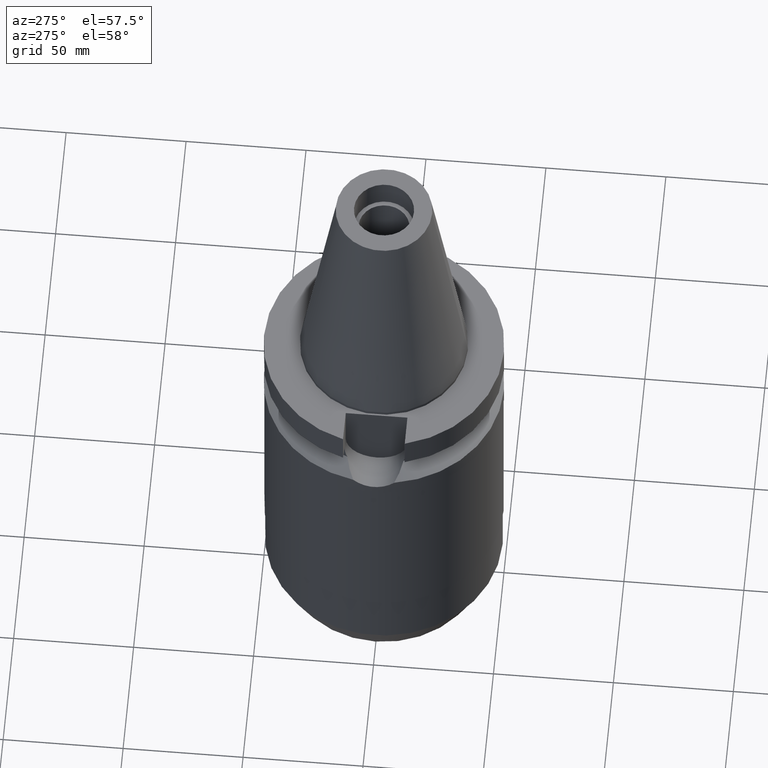
[diagram: clean part render]
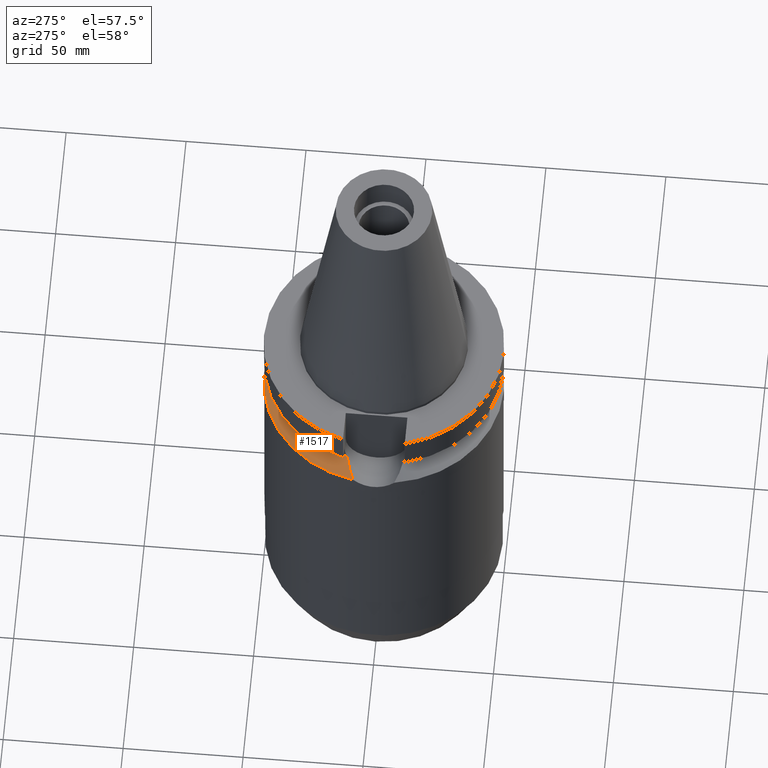
[diagram: same view with one face highlighted and labeled with its STEP entity id]
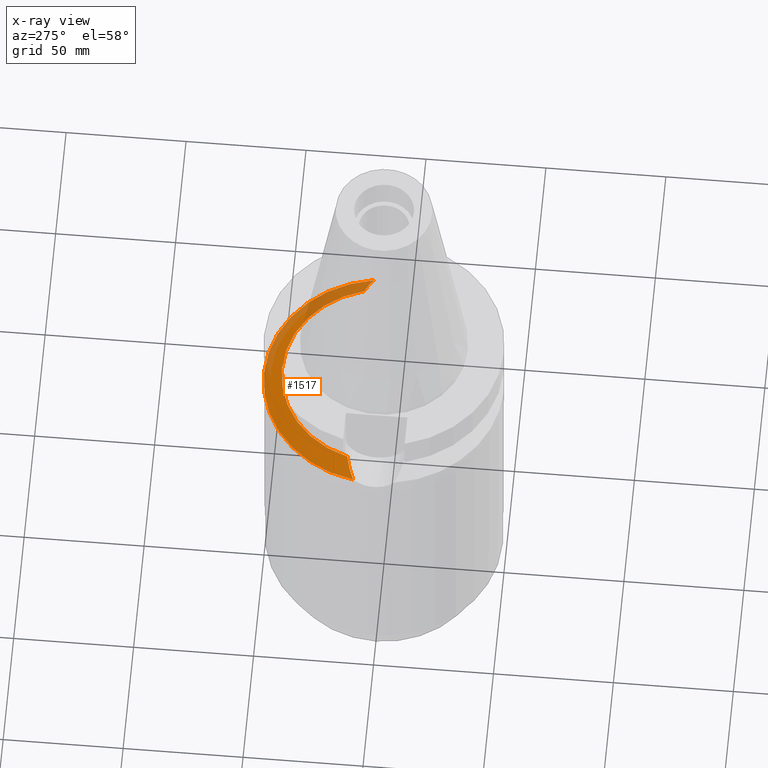
[diagram: x-ray of the same camera — body ghosted, the highlighted face saturated]
A machine part, auxiliary view. The second image highlights one B-rep face of the part: STEP entity #1517.
The next image is the same camera in x-ray: the body ghosted, the highlighted face saturated — about 27% of this face is hidden behind the body in this view.
In plain terms, the highlighted conical surface has half-angle 60 deg.
Its self-contained STEP definition (entity closure, byte-faithful):
#269=CARTESIAN_POINT('',(-4.926250064874E1,8.556052234130E0,-3.073730776427E1));
#377=CARTESIAN_POINT('',(-4.085052569294E1,1.172538061688E1,-2.640718074535E1));
#378=CARTESIAN_POINT('',(-4.199352422803E1,1.145994385176E1,-2.699919902501E1));
#379=CARTESIAN_POINT('',(-4.414328403390E1,1.085477813397E1,-2.810912070415E1));
#380=CARTESIAN_POINT('',(-4.694720385246E1,9.776387596408E0,-2.955077004599E1));
#381=CARTESIAN_POINT('',(-4.853760056062E1,8.972047711199E0,-3.036605870056E1));
#382=CARTESIAN_POINT('',(-4.926250064874E1,8.556052234130E0,-3.073730776427E1));
#387=CARTESIAN_POINT('',(0.E0,0.E0,-3.073730776427E1));
#388=DIRECTION('',(0.E0,0.E0,-1.E0));
#389=DIRECTION('',(-9.852500129747E-1,1.711210446826E-1,0.E0));
#390=AXIS2_PLACEMENT_3D('',#387,#388,#389);
#395=CARTESIAN_POINT('',(0.E0,0.E0,-3.073730776427E1));
#396=DIRECTION('',(0.E0,0.E0,-1.E0));
#397=DIRECTION('',(0.E0,1.E0,0.E0));
#398=AXIS2_PLACEMENT_3D('',#395,#396,#397);
#403=CARTESIAN_POINT('',(4.926250064874E1,8.556052234130E0,-3.073730776427E1));
#404=CARTESIAN_POINT('',(4.853464050943E1,8.973746383784E0,-3.036454274512E1));
#405=CARTESIAN_POINT('',(4.693989911489E1,9.780988774304E0,-2.954704920031E1));
#406=CARTESIAN_POINT('',(4.409107437528E1,1.087226557860E1,-2.808223843418E1));
#407=CARTESIAN_POINT('',(4.197049544438E1,1.146529179023E1,-2.698727122243E1));
#408=CARTESIAN_POINT('',(4.085052569294E1,1.172538061688E1,-2.640718074535E1));
#413=CARTESIAN_POINT('',(0.E0,0.E0,-2.640718074535E1));
#414=DIRECTION('',(0.E0,0.E0,1.E0));
#415=DIRECTION('',(9.611888398338E-1,2.758913086325E-1,0.E0));
#416=AXIS2_PLACEMENT_3D('',#413,#414,#415);
#421=CARTESIAN_POINT('',(0.E0,0.E0,-2.640718074535E1));
#422=DIRECTION('',(0.E0,0.E0,1.E0));
#423=DIRECTION('',(0.E0,1.E0,0.E0));
#424=AXIS2_PLACEMENT_3D('',#421,#422,#423);
#434=CARTESIAN_POINT('',(-4.085052569294E1,1.172538061688E1,-2.640718074535E1));
#1099=VERTEX_POINT('',#434);
#1100=CARTESIAN_POINT('',(0.E0,4.25E1,-2.640718074535E1));
#1101=VERTEX_POINT('',#1100);
#1102=CARTESIAN_POINT('',(4.085052569294E1,1.172538061688E1,-2.640718074535E1));
#1103=VERTEX_POINT('',#1102);
#1121=VERTEX_POINT('',#269);
#1129=CARTESIAN_POINT('',(0.E0,5.E1,-3.073730776427E1));
#1130=VERTEX_POINT('',#1129);
#1131=CARTESIAN_POINT('',(4.926250064874E1,8.556052234129E0,-3.073730776427E1));
#1132=VERTEX_POINT('',#1131);
#1502=CARTESIAN_POINT('',(0.E0,0.E0,-2.857224425481E1));
#1503=DIRECTION('',(0.E0,0.E0,-1.E0));
#1504=DIRECTION('',(0.E0,-1.E0,0.E0));
#1505=AXIS2_PLACEMENT_3D('',#1502,#1503,#1504);
#1506=CONICAL_SURFACE('',#1505,4.625E1,6.E1);
#1507=ORIENTED_EDGE('',*,*,#1412,.T.);
#1508=ORIENTED_EDGE('',*,*,#1441,.T.);
#1509=ORIENTED_EDGE('',*,*,#1492,.T.);
#1510=ORIENTED_EDGE('',*,*,#1481,.T.);
#1512=ORIENTED_EDGE('',*,*,#1511,.T.);
#1514=ORIENTED_EDGE('',*,*,#1513,.T.);
#1515=EDGE_LOOP('',(#1507,#1508,#1509,#1510,#1512,#1514));
#1516=FACE_OUTER_BOUND('',#1515,.F.);
#383=B_SPLINE_CURVE_WITH_KNOTS('',3,(#377,#378,#379,#380,#381,#382),
.UNSPECIFIED.,.F.,.F.,(4,1,1,4),(0.E0,3.333333333333E-1,6.666666666667E-1,1.E0),
.UNSPECIFIED.);
#391=CIRCLE('',#390,5.E1);
#399=CIRCLE('',#398,5.E1);
#409=B_SPLINE_CURVE_WITH_KNOTS('',3,(#403,#404,#405,#406,#407,#408),
.UNSPECIFIED.,.F.,.F.,(4,1,1,4),(0.E0,3.333333333333E-1,6.666666666667E-1,1.E0),
.UNSPECIFIED.);
#417=CIRCLE('',#416,4.25E1);
#425=CIRCLE('',#424,4.25E1);
#1412=EDGE_CURVE('',#1099,#1121,#383,.T.);
#1441=EDGE_CURVE('',#1121,#1130,#391,.T.);
#1481=EDGE_CURVE('',#1132,#1103,#409,.T.);
#1492=EDGE_CURVE('',#1130,#1132,#399,.T.);
#1511=EDGE_CURVE('',#1103,#1101,#417,.T.);
#1513=EDGE_CURVE('',#1101,#1099,#425,.T.);
#1517=ADVANCED_FACE('',(#1516),#1506,.T.);